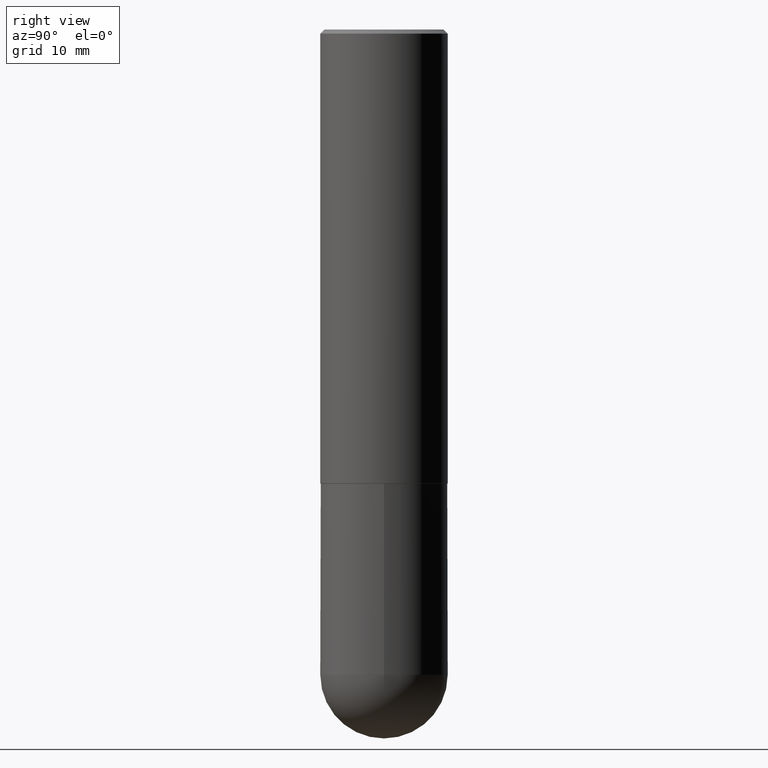
[diagram: clean part render]
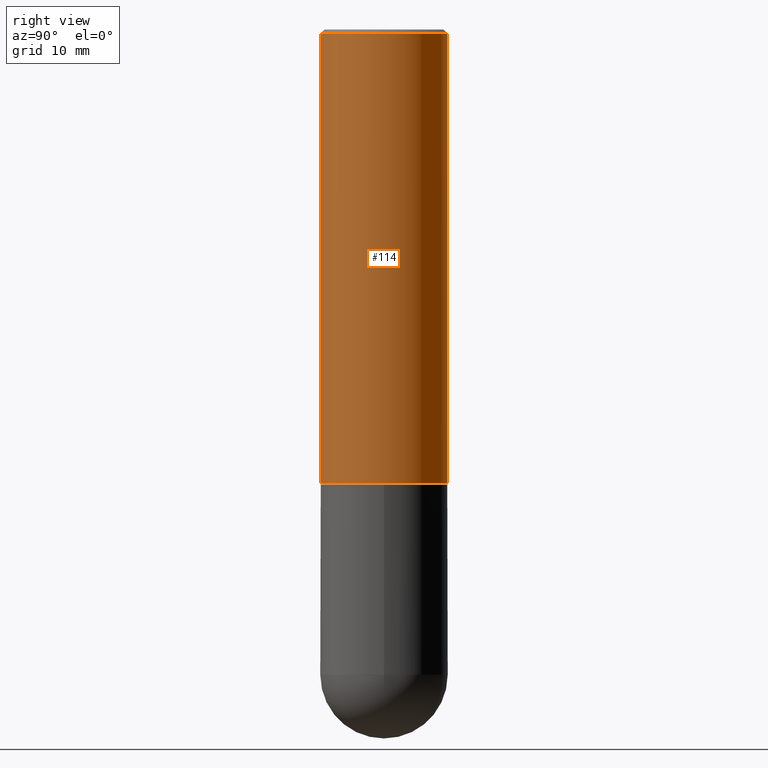
[diagram: same view with one face highlighted and labeled with its STEP entity id]
A machine part, right view. The second image highlights one B-rep face of the part: STEP entity #114.
In plain terms, the highlighted cylindrical surface (partial cylindrical patch) has radius 7.9997 mm, axis along (-0, 0, 1).
Its self-contained STEP definition (entity closure, byte-faithful):
#16 = LINE ( 'NONE', #339, #396 ) ;
#22 = CARTESIAN_POINT ( 'NONE',  ( 5.485885888258796113E-29, -7.831090478634690748E-15, -2.243099999999999650 ) ) ;
#43 = EDGE_CURVE ( 'NONE', #157, #73, #16, .T. ) ;
#45 = ORIENTED_EDGE ( 'NONE', *, *, #97, .T. ) ;
#47 = AXIS2_PLACEMENT_3D ( 'NONE', #22, #369, #57 ) ;
#57 = DIRECTION ( 'NONE',  ( -6.982962677686265922E-15, -1.000000000000000000, 3.469564049740290009E-15 ) ) ;
#60 = VECTOR ( 'NONE', #86, 39.37007874015748143 ) ;
#73 = VERTEX_POINT ( 'NONE', #78 ) ;
#78 = CARTESIAN_POINT ( 'NONE',  ( -2.160713844398143363E-15, -0.3149500000000000632, -0.01999999999999896999 ) ) ;
#86 = DIRECTION ( 'NONE',  ( -2.445671565359902220E-29, 3.491190976164546108E-15, 1.000000000000000000 ) ) ;
#91 = DIRECTION ( 'NONE',  ( -6.982962677686265922E-15, -1.000000000000000000, 3.496670018878889100E-15 ) ) ;
#92 = CYLINDRICAL_SURFACE ( 'NONE', #390, 0.3149500000000001743 ) ;
#95 = ORIENTED_EDGE ( 'NONE', *, *, #124, .T. ) ;
#97 = EDGE_CURVE ( 'NONE', #157, #391, #243, .T. ) ;
#99 = VERTEX_POINT ( 'NONE', #258 ) ;
#114 = ADVANCED_FACE ( 'NONE', ( #212 ), #92, .T. ) ;
#120 = CARTESIAN_POINT ( 'NONE',  ( 2.237854346276435985E-15, 0.3149500000000001743, -1.099550597943024265E-15 ) ) ;
#124 = EDGE_CURVE ( 'NONE', #391, #99, #314, .T. ) ;
#126 = CARTESIAN_POINT ( 'NONE',  ( 0.000000000000000000, 0.000000000000000000, 0.000000000000000000 ) ) ;
#138 = DIRECTION ( 'NONE',  ( -2.445671565359902220E-29, 3.491190976164546108E-15, 1.000000000000000000 ) ) ;
#157 = VERTEX_POINT ( 'NONE', #277 ) ;
#171 = DIRECTION ( 'NONE',  ( -6.982962677686264344E-15, -1.000000000000000000, 3.491190976164545714E-15 ) ) ;
#172 = ORIENTED_EDGE ( 'NONE', *, *, #43, .F. ) ;
#175 = DIRECTION ( 'NONE',  ( -2.445671565359902220E-29, 3.491190976164545714E-15, 1.000000000000000000 ) ) ;
#183 = CARTESIAN_POINT ( 'NONE',  ( 4.891343130719822166E-31, -6.982381952329116622E-17, -0.02000000000000007327 ) ) ;
#212 = FACE_OUTER_BOUND ( 'NONE', #261, .T. ) ;
#238 = CARTESIAN_POINT ( 'NONE',  ( 2.237854346276464384E-15, 0.3149499999999924027, -2.243100000000000538 ) ) ;
#243 = CIRCLE ( 'NONE', #47, 0.3149500000000002853 ) ;
#258 = CARTESIAN_POINT ( 'NONE',  ( 2.199284095337289871E-15, 0.3149499999999999522, -0.02000000000000117309 ) ) ;
#261 = EDGE_LOOP ( 'NONE', ( #45, #95, #389, #172 ) ) ;
#277 = CARTESIAN_POINT ( 'NONE',  ( -2.199284095337236228E-15, -0.3149500000000081124, -2.243099999999998317 ) ) ;
#286 = AXIS2_PLACEMENT_3D ( 'NONE', #183, #383, #91 ) ;
#314 = LINE ( 'NONE', #120, #60 ) ;
#339 = CARTESIAN_POINT ( 'NONE',  ( -2.199284095337290265E-15, -0.3149500000000001743, 1.099550597943024265E-15 ) ) ;
#363 = CIRCLE ( 'NONE', #286, 0.3149500000000000077 ) ;
#369 = DIRECTION ( 'NONE',  ( -2.445671565359902220E-29, 3.491190976164545714E-15, 1.000000000000000000 ) ) ;
#383 = DIRECTION ( 'NONE',  ( -2.445671565359902220E-29, 3.491190976164545714E-15, 1.000000000000000000 ) ) ;
#389 = ORIENTED_EDGE ( 'NONE', *, *, #412, .F. ) ;
#390 = AXIS2_PLACEMENT_3D ( 'NONE', #126, #175, #171 ) ;
#391 = VERTEX_POINT ( 'NONE', #238 ) ;
#396 = VECTOR ( 'NONE', #138, 39.37007874015748143 ) ;
#412 = EDGE_CURVE ( 'NONE', #73, #99, #363, .T. ) ;